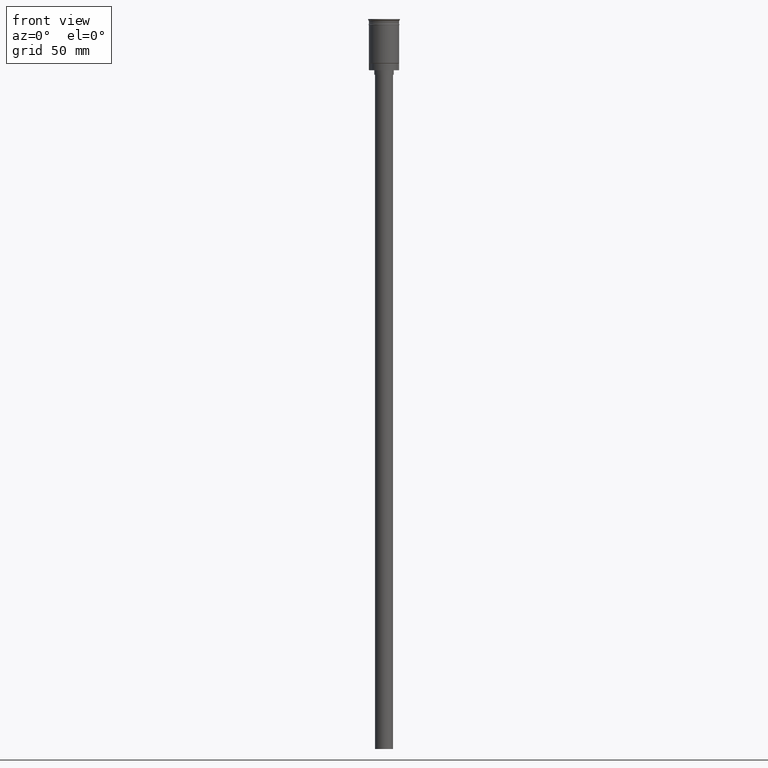
[diagram: clean part render]
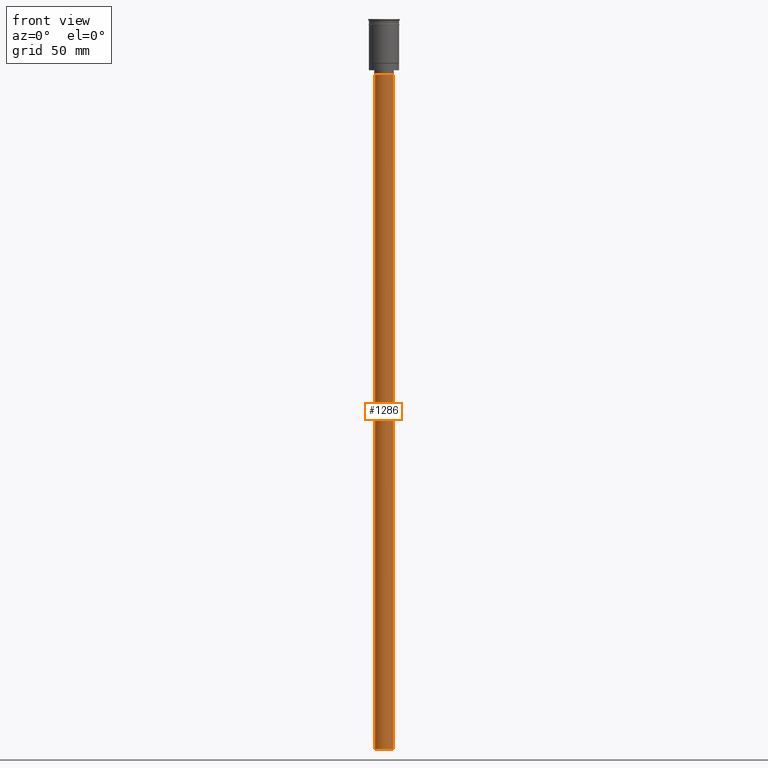
[diagram: same view with one face highlighted and labeled with its STEP entity id]
A machine part, front view. The second image highlights one B-rep face of the part: STEP entity #1286.
In plain terms, the highlighted cylindrical surface (edge-blend (fillet) strip) has radius 6 mm, axis along (-0, -0, 1).
Its self-contained STEP definition (entity closure, byte-faithful):
#10 = CYLINDRICAL_SURFACE ( 'NONE', #1165, 6.000000000000000888 ) ;
#121 = CIRCLE ( 'NONE', #1295, 6.000000000000000888 ) ;
#130 = CARTESIAN_POINT ( 'NONE',  ( 0.000000000000000000, 0.000000000000000000, -484.0000000000000000 ) ) ;
#162 = CARTESIAN_POINT ( 'NONE',  ( 0.000000000000000000, 0.000000000000000000, -37.00000000000000000 ) ) ;
#277 = CARTESIAN_POINT ( 'NONE',  ( -6.000000000000000888, 7.347880794884120722E-16, -37.00000000000000000 ) ) ;
#321 = EDGE_CURVE ( 'NONE', #357, #779, #1072, .T. ) ;
#352 = CARTESIAN_POINT ( 'NONE',  ( 6.000000000000000888, 0.000000000000000000, -37.00000000000000000 ) ) ;
#357 = VERTEX_POINT ( 'NONE', #633 ) ;
#463 = DIRECTION ( 'NONE',  ( -1.000000000000000000, 0.000000000000000000, 0.000000000000000000 ) ) ;
#517 = CARTESIAN_POINT ( 'NONE',  ( -6.000000000000000888, 7.347880794884120722E-16, -484.0000000000000000 ) ) ;
#523 = FACE_OUTER_BOUND ( 'NONE', #909, .T. ) ;
#548 = VECTOR ( 'NONE', #1276, 1000.000000000000000 ) ;
#603 = EDGE_CURVE ( 'NONE', #357, #663, #1417, .T. ) ;
#633 = CARTESIAN_POINT ( 'NONE',  ( 6.000000000000000888, 0.000000000000000000, -484.0000000000000000 ) ) ;
#663 = VERTEX_POINT ( 'NONE', #352 ) ;
#683 = DIRECTION ( 'NONE',  ( 0.000000000000000000, 0.000000000000000000, -1.000000000000000000 ) ) ;
#684 = AXIS2_PLACEMENT_3D ( 'NONE', #1075, #1559, #463 ) ;
#779 = VERTEX_POINT ( 'NONE', #517 ) ;
#848 = EDGE_CURVE ( 'NONE', #779, #1326, #1004, .T. ) ;
#866 = ORIENTED_EDGE ( 'NONE', *, *, #603, .T. ) ;
#868 = VECTOR ( 'NONE', #1176, 1000.000000000000000 ) ;
#909 = EDGE_LOOP ( 'NONE', ( #1603, #1212, #866, #1172 ) ) ;
#962 = EDGE_CURVE ( 'NONE', #663, #1326, #121, .T. ) ;
#1004 = LINE ( 'NONE', #1149, #548 ) ;
#1018 = DIRECTION ( 'NONE',  ( -0.000000000000000000, -0.000000000000000000, 1.000000000000000000 ) ) ;
#1072 = CIRCLE ( 'NONE', #684, 6.000000000000000888 ) ;
#1075 = CARTESIAN_POINT ( 'NONE',  ( 0.000000000000000000, 0.000000000000000000, -484.0000000000000000 ) ) ;
#1149 = CARTESIAN_POINT ( 'NONE',  ( -6.000000000000000888, 7.347880794884120722E-16, -484.0000000000000000 ) ) ;
#1165 = AXIS2_PLACEMENT_3D ( 'NONE', #130, #1018, #1501 ) ;
#1172 = ORIENTED_EDGE ( 'NONE', *, *, #962, .T. ) ;
#1176 = DIRECTION ( 'NONE',  ( -0.000000000000000000, -0.000000000000000000, 1.000000000000000000 ) ) ;
#1212 = ORIENTED_EDGE ( 'NONE', *, *, #321, .F. ) ;
#1276 = DIRECTION ( 'NONE',  ( -0.000000000000000000, -0.000000000000000000, 1.000000000000000000 ) ) ;
#1286 = ADVANCED_FACE ( 'NONE', ( #523 ), #10, .T. ) ;
#1290 = DIRECTION ( 'NONE',  ( -1.000000000000000000, 0.000000000000000000, 0.000000000000000000 ) ) ;
#1295 = AXIS2_PLACEMENT_3D ( 'NONE', #162, #683, #1290 ) ;
#1301 = CARTESIAN_POINT ( 'NONE',  ( 6.000000000000000888, 0.000000000000000000, -484.0000000000000000 ) ) ;
#1326 = VERTEX_POINT ( 'NONE', #277 ) ;
#1417 = LINE ( 'NONE', #1301, #868 ) ;
#1501 = DIRECTION ( 'NONE',  ( 1.000000000000000000, 0.000000000000000000, 0.000000000000000000 ) ) ;
#1559 = DIRECTION ( 'NONE',  ( 0.000000000000000000, 0.000000000000000000, -1.000000000000000000 ) ) ;
#1603 = ORIENTED_EDGE ( 'NONE', *, *, #848, .F. ) ;